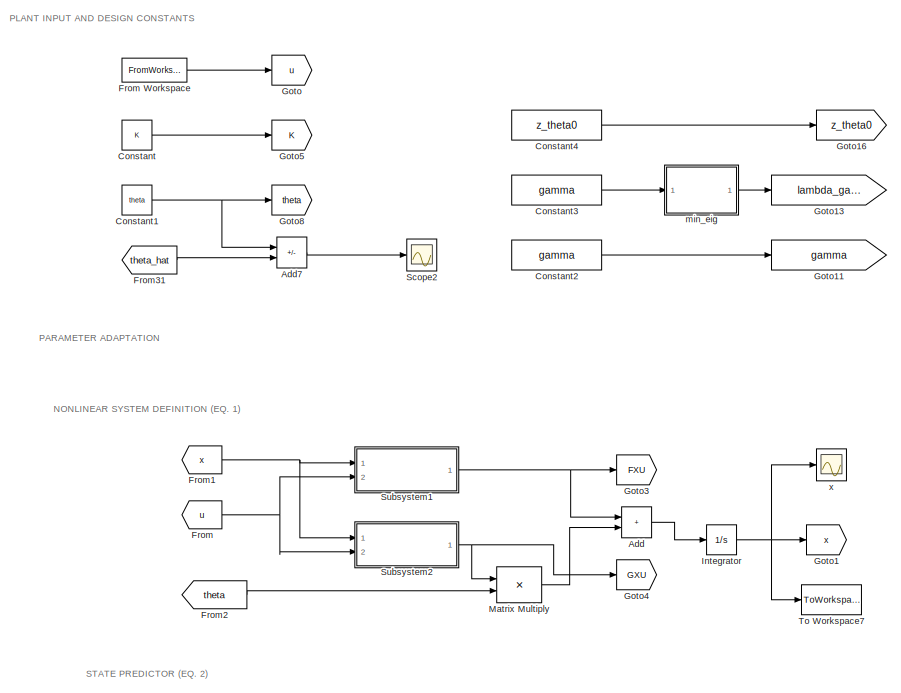
[diagram: root canvas - part 1/3, top left region]
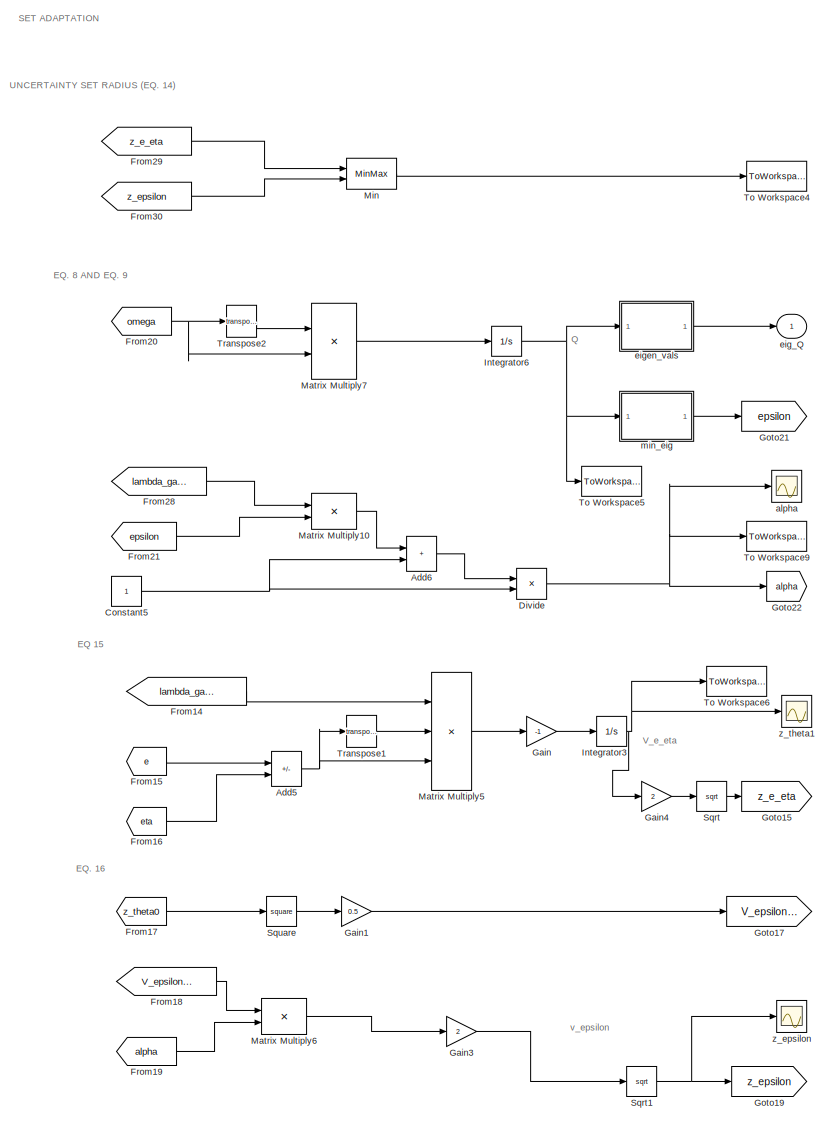
[diagram: root canvas - part 2/3, middle right region]
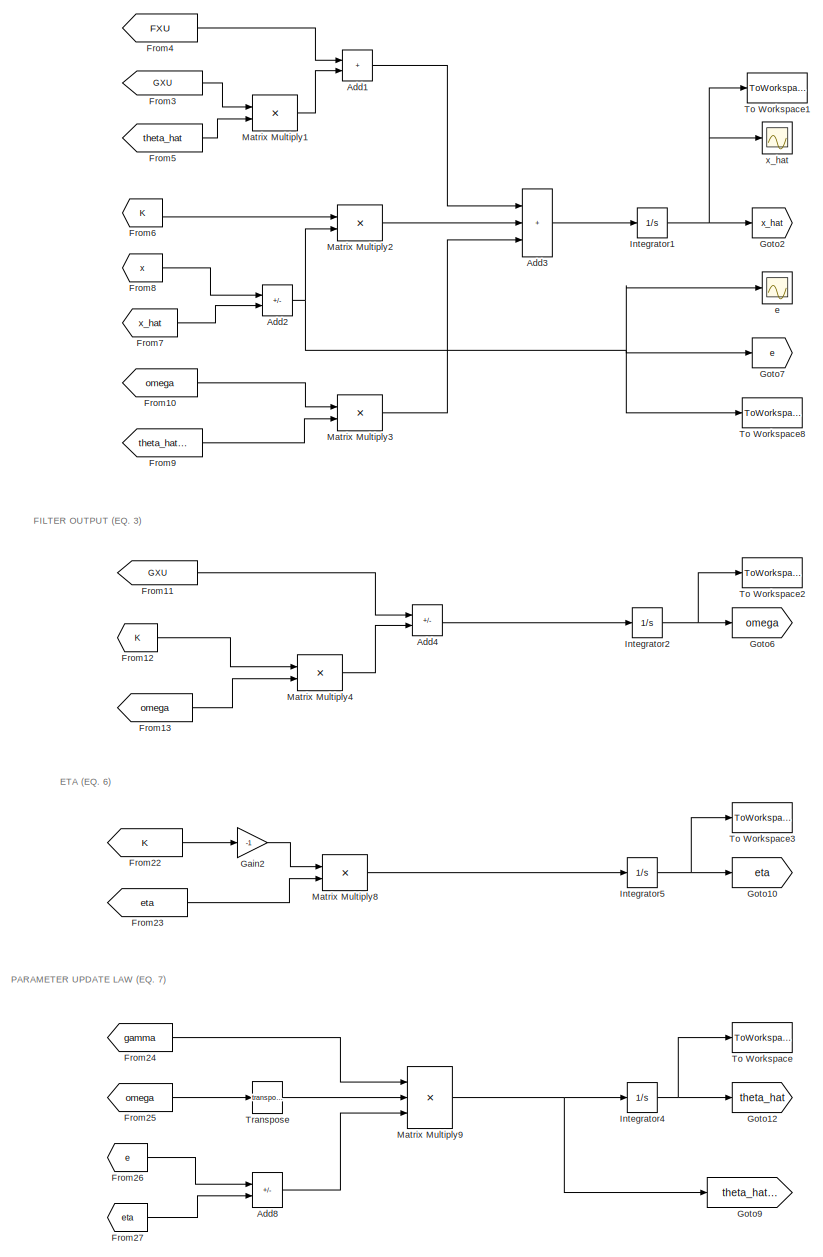
[diagram: root canvas - part 3/3, bottom left region]
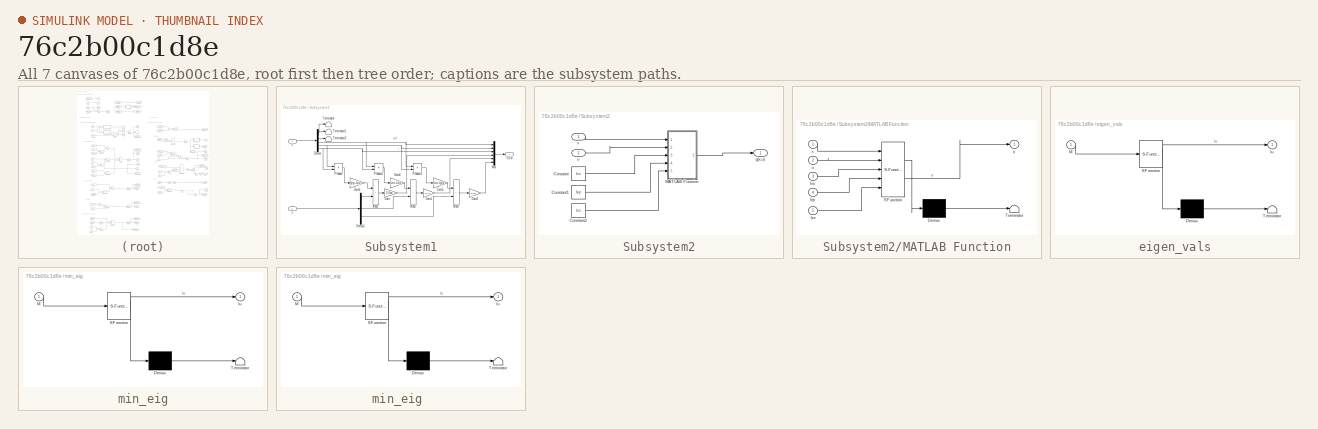
[diagram: thumbnail index - all 7 canvases of the model, root first then tree order]
MODEL slx_76c2b00c1d8e
KIND model
CONFIG AbsTol = auto
CONFIG EnableMultiTasking = off
CONFIG FixedStep = 0.001
CONFIG MaxStep = auto
CONFIG MinStep = auto
CONFIG RelTol = 1e-3
CONFIG SampleTimeConstraint = Unconstrained
CONFIG Solver = FixedStepAuto
CONFIG SolverName = FixedStepAuto
CONFIG StartTime = 0.0
CONFIG StopTime = ts
BLOCK [Sum] Add
  IconShape = rectangular
  Ports = [2, 1]
BLOCK [Sum] Add1
  IconShape = rectangular
  Ports = [2, 1]
BLOCK [Sum] Add2
  IconShape = rectangular
  Inputs = +-
  Ports = [2, 1]
BLOCK [Sum] Add3
  IconShape = rectangular
  Inputs = +++
  Ports = [3, 1]
BLOCK [Sum] Add4
  IconShape = rectangular
  Inputs = +-
  Ports = [2, 1]
BLOCK [Sum] Add5
  IconShape = rectangular
  Inputs = +-
  Ports = [2, 1]
BLOCK [Sum] Add6
  IconShape = rectangular
  Ports = [2, 1]
BLOCK [Sum] Add7
  IconShape = rectangular
  Inputs = +-
  Ports = [2, 1]
BLOCK [Sum] Add8
  IconShape = rectangular
  Inputs = +-
  Ports = [2, 1]
BLOCK [Constant] Constant
  Value = K
BLOCK [Constant] Constant1
  Value = theta
BLOCK [Constant] Constant2
  Value = gamma
BLOCK [Constant] Constant3
  Value = gamma
BLOCK [Constant] Constant4
  Value = z_theta0
BLOCK [Constant] Constant5
BLOCK [Product] Divide
  Inputs = /*
  Ports = [2, 1]
BLOCK [From] From
  GotoTag = u
BLOCK [FromWorkspace] From Workspace
  VariableName = uSim
BLOCK [From] From1
  GotoTag = x
BLOCK [From] From10
  GotoTag = omega
BLOCK [From] From11
  GotoTag = GXU
BLOCK [From] From12
  GotoTag = K
BLOCK [From] From13
  GotoTag = omega
BLOCK [From] From14
  GotoTag = lambda_gamma
BLOCK [From] From15
  GotoTag = e
BLOCK [From] From16
  GotoTag = eta
BLOCK [From] From17
  GotoTag = z_theta0
BLOCK [From] From18
  GotoTag = V_epsilon_t0
BLOCK [From] From19
  GotoTag = alpha
BLOCK [From] From2
  GotoTag = theta
BLOCK [From] From20
  GotoTag = omega
BLOCK [From] From21
  GotoTag = epsilon
BLOCK [From] From22
  GotoTag = K
BLOCK [From] From23
  GotoTag = eta
BLOCK [From] From24
  GotoTag = gamma
BLOCK [From] From25
  GotoTag = omega
BLOCK [From] From26
  GotoTag = e
BLOCK [From] From27
  GotoTag = eta
BLOCK [From] From28
  GotoTag = lambda_gamma
BLOCK [From] From29
  GotoTag = z_e_eta
BLOCK [From] From3
  GotoTag = GXU
BLOCK [From] From30
  GotoTag = z_epsilon
BLOCK [From] From31
  GotoTag = theta_hat
BLOCK [From] From4
  GotoTag = FXU
BLOCK [From] From5
  GotoTag = theta_hat
BLOCK [From] From6
  GotoTag = K
BLOCK [From] From7
  GotoTag = x_hat
BLOCK [From] From8
  GotoTag = x
BLOCK [From] From9
  GotoTag = theta_hat_dot
BLOCK [Gain] Gain
  Gain = -1
BLOCK [Gain] Gain1
  Gain = 0.5
BLOCK [Gain] Gain2
  Gain = -1
BLOCK [Gain] Gain3
  Gain = 2
BLOCK [Gain] Gain4
  Gain = 2
BLOCK [Goto] Goto
  GotoTag = u
BLOCK [Goto] Goto1
  GotoTag = x
BLOCK [Goto] Goto10
  GotoTag = eta
BLOCK [Goto] Goto11
  GotoTag = gamma
BLOCK [Goto] Goto12
  GotoTag = theta_hat
BLOCK [Goto] Goto13
  GotoTag = lambda_gamma
BLOCK [Goto] Goto15
  GotoTag = z_e_eta
BLOCK [Goto] Goto16
  GotoTag = z_theta0
BLOCK [Goto] Goto17
  GotoTag = V_epsilon_t0
BLOCK [Goto] Goto19
  GotoTag = z_epsilon
BLOCK [Goto] Goto2
  GotoTag = x_hat
BLOCK [Goto] Goto21
  GotoTag = epsilon
BLOCK [Goto] Goto22
  GotoTag = alpha
BLOCK [Goto] Goto3
  GotoTag = FXU
BLOCK [Goto] Goto4
  GotoTag = GXU
BLOCK [Goto] Goto5
  GotoTag = K
BLOCK [Goto] Goto6
  GotoTag = omega
BLOCK [Goto] Goto7
  GotoTag = e
BLOCK [Goto] Goto8
  GotoTag = theta
BLOCK [Goto] Goto9
  GotoTag = theta_hat_dot
BLOCK [Integrator] Integrator
  InitialCondition = x(:,i)
  Ports = [1, 1]
BLOCK [Integrator] Integrator1
  InitialCondition = xHat(:,i)
  Ports = [1, 1]
BLOCK [Integrator] Integrator2
  InitialCondition = omega(:,:,i)
  Ports = [1, 1]
BLOCK [Integrator] Integrator3
  InitialCondition = V_e_eta(i)
  Ports = [1, 1]
BLOCK [Integrator] Integrator4
  InitialCondition = thetaHat(:,i)
  Ports = [1, 1]
BLOCK [Integrator] Integrator5
  InitialCondition = eta(:,i)
  Ports = [1, 1]
BLOCK [Integrator] Integrator6
  InitialCondition = Q(:,:,i)
  Ports = [1, 1]
BLOCK [Product] Matrix Multiply
  Multiplication = Matrix(*)
  Ports = [2, 1]
BLOCK [Product] Matrix Multiply1
  Multiplication = Matrix(*)
  Ports = [2, 1]
BLOCK [Product] Matrix Multiply10
  Multiplication = Matrix(*)
  Ports = [2, 1]
BLOCK [Product] Matrix Multiply2
  Multiplication = Matrix(*)
  Ports = [2, 1]
BLOCK [Product] Matrix Multiply3
  Multiplication = Matrix(*)
  Ports = [2, 1]
BLOCK [Product] Matrix Multiply4
  Multiplication = Matrix(*)
  Ports = [2, 1]
BLOCK [Product] Matrix Multiply5
  Inputs = 3
  Multiplication = Matrix(*)
  Ports = [3, 1]
BLOCK [Product] Matrix Multiply6
  Multiplication = Matrix(*)
  Ports = [2, 1]
BLOCK [Product] Matrix Multiply7
  Multiplication = Matrix(*)
  Ports = [2, 1]
BLOCK [Product] Matrix Multiply8
  Multiplication = Matrix(*)
  Ports = [2, 1]
BLOCK [Product] Matrix Multiply9
  Inputs = 3
  Multiplication = Matrix(*)
  Ports = [3, 1]
BLOCK [MinMax] Min
  Inputs = 2
  Ports = [2, 1]
BLOCK [Scope] Scope2
  Floating = off
  NumInputPorts = 1
  Ports = [1]
  ScopeSpecificationString = Simulink.scopes.TimeScopeBlockCfg('CurrentConfiguration', extmgr.ConfigurationSet(extmgr.Configuration('Core','General UI',true),extmgr.Configuration('Core','Source UI',true),extmgr.Configuration('Sources','WiredSimulink',true,'DataLoggingVariableName','ScopeData2'),extmgr.Configuration('Visuals','Time Domain',true,'SerializedDisplays',{struct('MinYLimReal','-0.1875','MaxYLimReal','1.6875','YLabel...<+1429ch>
BLOCK [Sqrt] Sqrt
BLOCK [Sqrt] Sqrt1
BLOCK [Math] Square
  Operator = square
  Ports = [1, 1]
  SignedPower = on
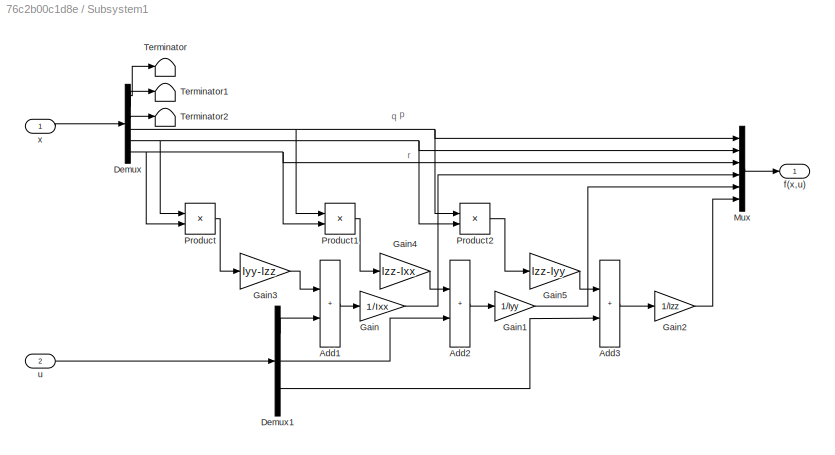
BLOCK [SubSystem] Subsystem1
  Ports = [2, 1]
  RequestExecContextInheritance = off
BLOCK [Sum] Subsystem1/Add1
  IconShape = rectangular
  Ports = [2, 1]
BLOCK [Sum] Subsystem1/Add2
  IconShape = rectangular
  Ports = [2, 1]
BLOCK [Sum] Subsystem1/Add3
  IconShape = rectangular
  Ports = [2, 1]
BLOCK [Demux] Subsystem1/Demux
  Outputs = 6
  Ports = [1, 6]
BLOCK [Demux] Subsystem1/Demux1
  Outputs = 3
  Ports = [1, 3]
BLOCK [Gain] Subsystem1/Gain
  Gain = 1/Ixx
BLOCK [Gain] Subsystem1/Gain1
  Gain = 1/Iyy
BLOCK [Gain] Subsystem1/Gain2
  Gain = 1/Izz
BLOCK [Gain] Subsystem1/Gain3
  Gain = Iyy-Izz
BLOCK [Gain] Subsystem1/Gain4
  Gain = Izz-Ixx
BLOCK [Gain] Subsystem1/Gain5
  Gain = Izz-Iyy
BLOCK [Mux] Subsystem1/Mux
  DisplayOption = bar
  Inputs = 6
  Ports = [6, 1]
BLOCK [Product] Subsystem1/Product
  Ports = [2, 1]
BLOCK [Product] Subsystem1/Product1
  Ports = [2, 1]
BLOCK [Product] Subsystem1/Product2
  Ports = [2, 1]
BLOCK [Terminator] Subsystem1/Terminator
BLOCK [Terminator] Subsystem1/Terminator1
BLOCK [Terminator] Subsystem1/Terminator2
BLOCK [Outport] Subsystem1/f(x,u)
  VectorParamsAs1DForOutWhenUnconnected = off
BLOCK [Inport] Subsystem1/u
  Port = 2
BLOCK [Inport] Subsystem1/x
BLOCK [SubSystem] Subsystem2
  Ports = [2, 1]
  RequestExecContextInheritance = off
BLOCK [Constant] Subsystem2/Constant
  Value = Ixx
BLOCK [Constant] Subsystem2/Constant1
  Value = Iyy
BLOCK [Constant] Subsystem2/Constant2
  Value = Izz
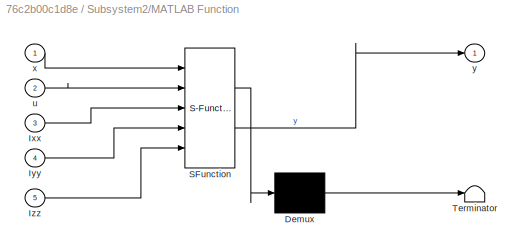
BLOCK [SubSystem] Subsystem2/MATLAB Function
  ErrorFcn = Stateflow.Translate.translate
  PermitHierarchicalResolution = ExplicitOnly
  Ports = [5, 1]
  RequestExecContextInheritance = off
  SFBlockType = MATLAB Function
  TreatAsAtomicUnit = on
BLOCK [Demux] Subsystem2/MATLAB Function/ Demux 
  Outputs = 1
  Ports = [1, 1]
BLOCK [S-Function] Subsystem2/MATLAB Function/ SFunction 
  EnableBusSupport = on
  FunctionName = sf_sfun
  PortCounts = [5 2]
  Ports = [5, 2]
  SFcnIsStateOwnerBlock = off
  SFunctionDeploymentMode = off
  Tag = Stateflow S-Function 5
BLOCK [Terminator] Subsystem2/MATLAB Function/ Terminator 
BLOCK [Inport] Subsystem2/MATLAB Function/Ixx
  Port = 3
BLOCK [Inport] Subsystem2/MATLAB Function/Iyy
  Port = 4
BLOCK [Inport] Subsystem2/MATLAB Function/Izz
  Port = 5
BLOCK [Inport] Subsystem2/MATLAB Function/u
  Port = 2
BLOCK [Inport] Subsystem2/MATLAB Function/x
BLOCK [Outport] Subsystem2/MATLAB Function/y
  VectorParamsAs1DForOutWhenUnconnected = off
BLOCK [Outport] Subsystem2/g(x,u)
  VectorParamsAs1DForOutWhenUnconnected = off
BLOCK [Inport] Subsystem2/u
  Port = 2
BLOCK [Inport] Subsystem2/x
BLOCK [ToWorkspace] To Workspace
  MaxDataPoints = inf
  Ports = [1]
  SampleTime = -1
  SaveFormat = Timeseries
  VariableName = theta_hat
BLOCK [ToWorkspace] To Workspace1
  MaxDataPoints = inf
  Ports = [1]
  SampleTime = -1
  SaveFormat = Timeseries
  VariableName = xHat
BLOCK [ToWorkspace] To Workspace2
  MaxDataPoints = inf
  Ports = [1]
  SampleTime = -1
  SaveFormat = Timeseries
  VariableName = omega
BLOCK [ToWorkspace] To Workspace3
  MaxDataPoints = inf
  Ports = [1]
  SampleTime = -1
  SaveFormat = Timeseries
  VariableName = eta
BLOCK [ToWorkspace] To Workspace4
  MaxDataPoints = inf
  Ports = [1]
  SampleTime = -1
  SaveFormat = Timeseries
  VariableName = z_theta_current
BLOCK [ToWorkspace] To Workspace5
  MaxDataPoints = inf
  Ports = [1]
  SampleTime = -1
  SaveFormat = Timeseries
  VariableName = Q
BLOCK [ToWorkspace] To Workspace6
  MaxDataPoints = inf
  Ports = [1]
  SampleTime = -1
  SaveFormat = Timeseries
  VariableName = V_e_eta
BLOCK [ToWorkspace] To Workspace7
  MaxDataPoints = inf
  Ports = [1]
  SampleTime = -1
  SaveFormat = Timeseries
  VariableName = x
BLOCK [ToWorkspace] To Workspace8
  MaxDataPoints = inf
  Ports = [1]
  SampleTime = -1
  SaveFormat = Timeseries
  VariableName = e
BLOCK [ToWorkspace] To Workspace9
  MaxDataPoints = inf
  Ports = [1]
  SampleTime = -1
  SaveFormat = Timeseries
  VariableName = alpha
BLOCK [Math] Transpose
  Operator = transpose
  Ports = [1, 1]
  SignedPower = on
BLOCK [Math] Transpose1
  Operator = transpose
  Ports = [1, 1]
  SignedPower = on
BLOCK [Math] Transpose2
  Operator = transpose
  Ports = [1, 1]
  SignedPower = on
BLOCK [Scope] alpha
  Floating = off
  NameLocation = top
  NumInputPorts = 1
  Ports = [1]
  ScopeSpecificationString = Simulink.scopes.TimeScopeBlockCfg('CurrentConfiguration', extmgr.ConfigurationSet(extmgr.Configuration('Core','General UI',true),extmgr.Configuration('Core','Source UI',true),extmgr.Configuration('Sources','WiredSimulink',true,'DataLoggingVariableName','ScopeData6'),extmgr.Configuration('Visuals','Time Domain',true,'SerializedDisplays',{struct('MinYLimReal','-0.11085','MaxYLimReal','1.12343','YLab...<+1438ch>
BLOCK [Scope] e
  Floating = off
  NumInputPorts = 1
  Ports = [1]
  ScopeSpecificationString = Simulink.scopes.TimeScopeBlockCfg('CurrentConfiguration', extmgr.ConfigurationSet(extmgr.Configuration('Core','General UI',true),extmgr.Configuration('Core','Source UI',true),extmgr.Configuration('Sources','WiredSimulink',true,'DataLoggingVariableName','ScopeData1'),extmgr.Configuration('Visuals','Time Domain',true,'SerializedDisplays',{struct('MinYLimReal','-0.93395','MaxYLimReal','1.29678','YLab...<+1421ch>
BLOCK [Outport] eig_Q
  VectorParamsAs1DForOutWhenUnconnected = off
BLOCK [SubSystem] eigen_vals
  ErrorFcn = Stateflow.Translate.translate
  PermitHierarchicalResolution = ExplicitOnly
  Ports = [1, 1]
  RequestExecContextInheritance = off
  SFBlockType = MATLAB Function
  TreatAsAtomicUnit = on
BLOCK [Demux] eigen_vals/ Demux 
  Outputs = 1
  Ports = [1, 1]
BLOCK [S-Function] eigen_vals/ SFunction 
  EnableBusSupport = on
  FunctionName = sf_sfun
  PortCounts = [1 2]
  Ports = [1, 2]
  SFcnIsStateOwnerBlock = off
  SFunctionDeploymentMode = off
  Tag = Stateflow S-Function 3
BLOCK [Terminator] eigen_vals/ Terminator 
BLOCK [Inport] eigen_vals/M
BLOCK [Outport] eigen_vals/lu
  VectorParamsAs1DForOutWhenUnconnected = off
BLOCK [SubSystem] min_eig
  ErrorFcn = Stateflow.Translate.translate
  PermitHierarchicalResolution = ExplicitOnly
  Ports = [1, 1]
  RequestExecContextInheritance = off
  SFBlockType = MATLAB Function
  TreatAsAtomicUnit = on
BLOCK [SubSystem] min_eig 
  ErrorFcn = Stateflow.Translate.translate
  PermitHierarchicalResolution = ExplicitOnly
  Ports = [1, 1]
  RequestExecContextInheritance = off
  SFBlockType = MATLAB Function
  TreatAsAtomicUnit = on
BLOCK [Demux] min_eig / Demux 
  Outputs = 1
  Ports = [1, 1]
BLOCK [S-Function] min_eig / SFunction 
  EnableBusSupport = on
  FunctionName = sf_sfun
  PortCounts = [1 2]
  Ports = [1, 2]
  SFcnIsStateOwnerBlock = off
  SFunctionDeploymentMode = off
  Tag = Stateflow S-Function 1
BLOCK [Terminator] min_eig / Terminator 
BLOCK [Inport] min_eig /M
BLOCK [Outport] min_eig /lu
  VectorParamsAs1DForOutWhenUnconnected = off
BLOCK [Demux] min_eig/ Demux 
  Outputs = 1
  Ports = [1, 1]
BLOCK [S-Function] min_eig/ SFunction 
  EnableBusSupport = on
  FunctionName = sf_sfun
  PortCounts = [1 2]
  Ports = [1, 2]
  SFcnIsStateOwnerBlock = off
  SFunctionDeploymentMode = off
  Tag = Stateflow S-Function 2
BLOCK [Terminator] min_eig/ Terminator 
BLOCK [Inport] min_eig/M
BLOCK [Outport] min_eig/lu
  VectorParamsAs1DForOutWhenUnconnected = off
BLOCK [Scope] x
  Floating = off
  NumInputPorts = 1
  Ports = [1]
  ScopeSpecificationString = Simulink.scopes.TimeScopeBlockCfg('CurrentConfiguration', extmgr.ConfigurationSet(extmgr.Configuration('Core','General UI',true),extmgr.Configuration('Core','Source UI',true),extmgr.Configuration('Sources','WiredSimulink',true,'DataLoggingVariableName','ScopeData3'),extmgr.Configuration('Visuals','Time Domain',true,'SerializedDisplays',{struct('MinYLimReal','-2.28272','MaxYLimReal','5.5816','YLabe...<+1431ch>
BLOCK [Scope] x_hat
  Floating = off
  NumInputPorts = 1
  Ports = [1]
  ScopeSpecificationString = Simulink.scopes.TimeScopeBlockCfg('CurrentConfiguration', extmgr.ConfigurationSet(extmgr.Configuration('Core','General UI',true),extmgr.Configuration('Core','Source UI',true),extmgr.Configuration('Sources','WiredSimulink',true),extmgr.Configuration('Visuals','Time Domain',true,'SerializedDisplays',{struct('MinYLimReal','-2.33447','MaxYLimReal','5.62062','YLabelReal','','MinYLimMag','0.00000','MaxY...<+1446ch>
BLOCK [Scope] z_epsilon
  Floating = off
  NumInputPorts = 1
  Ports = [1]
  ScopeSpecificationString = Simulink.scopes.TimeScopeBlockCfg('CurrentConfiguration', extmgr.ConfigurationSet(extmgr.Configuration('Core','General UI',true),extmgr.Configuration('Core','Source UI',true),extmgr.Configuration('Sources','WiredSimulink',true,'DataLoggingVariableName','ScopeData1'),extmgr.Configuration('Visuals','Time Domain',true,'SerializedDisplays',{struct('MinYLimReal','0.0083','MaxYLimReal','7.85582','YLabel...<+1431ch>
BLOCK [Scope] z_theta1
  Floating = off
  NumInputPorts = 1
  Ports = [1]
  ScopeSpecificationString = Simulink.scopes.TimeScopeBlockCfg('CurrentConfiguration', extmgr.ConfigurationSet(extmgr.Configuration('Core','General UI',true),extmgr.Configuration('Core','Source UI',true),extmgr.Configuration('Sources','WiredSimulink',true,'DataLoggingVariableName','ScopeData5'),extmgr.Configuration('Visuals','Time Domain',true,'SerializedDisplays',{struct('MinYLimReal','0.73438','MaxYLimReal','2.14062','YLabe...<+1441ch>
ANNOTATION (root): EQ 15
ANNOTATION (root): EQ. 16
ANNOTATION (root): EQ. 8 AND EQ. 9
ANNOTATION (root): ETA (EQ. 6)
ANNOTATION (root): FILTER OUTPUT (EQ. 3)
ANNOTATION (root): NONLINEAR SYSTEM DEFINITION (EQ. 1)
ANNOTATION (root): PARAMETER ADAPTATION
ANNOTATION (root): PARAMETER UPDATE LAW (EQ. 7)
ANNOTATION (root): PLANT INPUT AND DESIGN CONSTANTS
ANNOTATION (root): Q
ANNOTATION (root): SET ADAPTATION
ANNOTATION (root): STATE PREDICTOR (EQ. 2)
ANNOTATION (root): UNCERTAINTY SET RADIUS (EQ. 14)
ANNOTATION (root): V_e_eta
ANNOTATION (root): v_epsilon
ANNOTATION Subsystem1: p
ANNOTATION Subsystem1: q
ANNOTATION Subsystem1: r
LINE Add1:1 -> Add3:1
NET Add2:1 -> Goto7:1, Matrix Multiply2:2, To Workspace8:1, e:1
LINE Add3:1 -> Integrator1:1
LINE Add4:1 -> Integrator2:1
NET Add5:1 -> Matrix Multiply5:3, Transpose1:1
LINE Add6:1 -> Divide:1
LINE Add7:1 -> Scope2:1
LINE Add8:1 -> Matrix Multiply9:3
LINE Add:1 -> Integrator:1
NET Constant1:1 -> Add7:1, Goto8:1
LINE Constant2:1 -> Goto11:1
LINE Constant3:1 -> min_eig :1
LINE Constant4:1 -> Goto16:1
NET Constant5:1 -> Add6:2, Divide:2
LINE Constant:1 -> Goto5:1
NET Divide:1 -> Goto22:1, To Workspace9:1, alpha:1
LINE From Workspace:1 -> Goto:1
LINE From10:1 -> Matrix Multiply3:1
LINE From11:1 -> Add4:1
LINE From12:1 -> Matrix Multiply4:1
LINE From13:1 -> Matrix Multiply4:2
LINE From14:1 -> Matrix Multiply5:1
LINE From15:1 -> Add5:1
LINE From16:1 -> Add5:2
LINE From17:1 -> Square:1
LINE From18:1 -> Matrix Multiply6:1
LINE From19:1 -> Matrix Multiply6:2
NET From1:1 -> Subsystem1:1, Subsystem2:1
NET From20:1 -> Matrix Multiply7:2, Transpose2:1
LINE From21:1 -> Matrix Multiply10:2
LINE From22:1 -> Gain2:1
LINE From23:1 -> Matrix Multiply8:2
LINE From24:1 -> Matrix Multiply9:1
LINE From25:1 -> Transpose:1
LINE From26:1 -> Add8:1
LINE From27:1 -> Add8:2
LINE From28:1 -> Matrix Multiply10:1
LINE From29:1 -> Min:1
LINE From2:1 -> Matrix Multiply:2
LINE From30:1 -> Min:2
LINE From31:1 -> Add7:2
LINE From3:1 -> Matrix Multiply1:1
LINE From4:1 -> Add1:1
LINE From5:1 -> Matrix Multiply1:2
LINE From6:1 -> Matrix Multiply2:1
LINE From7:1 -> Add2:2
LINE From8:1 -> Add2:1
LINE From9:1 -> Matrix Multiply3:2
NET From:1 -> Subsystem1:2, Subsystem2:2
LINE Gain1:1 -> Goto17:1
LINE Gain2:1 -> Matrix Multiply8:1
LINE Gain3:1 -> Sqrt1:1
LINE Gain4:1 -> Sqrt:1
LINE Gain:1 -> Integrator3:1
NET Integrator1:1 -> Goto2:1, To Workspace1:1, x_hat:1
NET Integrator2:1 -> Goto6:1, To Workspace2:1
NET Integrator3:1 -> Gain4:1, To Workspace6:1, z_theta1:1
NET Integrator4:1 -> Goto12:1, To Workspace:1
NET Integrator5:1 -> Goto10:1, To Workspace3:1
NET Integrator6:1 -> To Workspace5:1, eigen_vals:1, min_eig:1
NET Integrator:1 -> Goto1:1, To Workspace7:1, x:1
LINE Matrix Multiply10:1 -> Add6:1
LINE Matrix Multiply1:1 -> Add1:2
LINE Matrix Multiply2:1 -> Add3:2
LINE Matrix Multiply3:1 -> Add3:3
LINE Matrix Multiply4:1 -> Add4:2
LINE Matrix Multiply5:1 -> Gain:1
LINE Matrix Multiply6:1 -> Gain3:1
LINE Matrix Multiply7:1 -> Integrator6:1
LINE Matrix Multiply8:1 -> Integrator5:1
NET Matrix Multiply9:1 -> Goto9:1, Integrator4:1
LINE Matrix Multiply:1 -> Add:2
LINE Min:1 -> To Workspace4:1
NET Sqrt1:1 -> Goto19:1, z_epsilon:1
LINE Sqrt:1 -> Goto15:1
LINE Square:1 -> Gain1:1
LINE Subsystem1/Add1:1 -> Subsystem1/Gain:1
LINE Subsystem1/Add2:1 -> Subsystem1/Gain1:1
LINE Subsystem1/Add3:1 -> Subsystem1/Gain2:1
LINE Subsystem1/Demux1:1 -> Subsystem1/Add1:2
LINE Subsystem1/Demux1:2 -> Subsystem1/Add2:2
LINE Subsystem1/Demux1:3 -> Subsystem1/Add3:2
LINE Subsystem1/Demux:1 -> Subsystem1/Terminator:1
LINE Subsystem1/Demux:2 -> Subsystem1/Terminator1:1
LINE Subsystem1/Demux:3 -> Subsystem1/Terminator2:1
NET Subsystem1/Demux:4 -> Subsystem1/Mux:1, Subsystem1/Product1:1, Subsystem1/Product2:1
NET Subsystem1/Demux:5 -> Subsystem1/Mux:2, Subsystem1/Product2:2, Subsystem1/Product:1
NET Subsystem1/Demux:6 -> Subsystem1/Mux:3, Subsystem1/Product1:2, Subsystem1/Product:2
LINE Subsystem1/Gain1:1 -> Subsystem1/Mux:5
LINE Subsystem1/Gain2:1 -> Subsystem1/Mux:6
LINE Subsystem1/Gain3:1 -> Subsystem1/Add1:1
LINE Subsystem1/Gain4:1 -> Subsystem1/Add2:1
LINE Subsystem1/Gain5:1 -> Subsystem1/Add3:1
LINE Subsystem1/Gain:1 -> Subsystem1/Mux:4
LINE Subsystem1/Mux:1 -> Subsystem1/f(x,u):1
LINE Subsystem1/Product1:1 -> Subsystem1/Gain4:1
LINE Subsystem1/Product2:1 -> Subsystem1/Gain5:1
LINE Subsystem1/Product:1 -> Subsystem1/Gain3:1
LINE Subsystem1/u:1 -> Subsystem1/Demux1:1
LINE Subsystem1/x:1 -> Subsystem1/Demux:1
NET Subsystem1:1 -> Add:1, Goto3:1
LINE Subsystem2/Constant1:1 -> Subsystem2/MATLAB Function:4
LINE Subsystem2/Constant2:1 -> Subsystem2/MATLAB Function:5
LINE Subsystem2/Constant:1 -> Subsystem2/MATLAB Function:3
LINE Subsystem2/MATLAB Function:1 -> Subsystem2/g(x,u):1
LINE Subsystem2/u:1 -> Subsystem2/MATLAB Function:2
LINE Subsystem2/x:1 -> Subsystem2/MATLAB Function:1
NET Subsystem2:1 -> Goto4:1, Matrix Multiply:1
LINE Transpose1:1 -> Matrix Multiply5:2
LINE Transpose2:1 -> Matrix Multiply7:1
LINE Transpose:1 -> Matrix Multiply9:2
LINE eigen_vals:1 -> eig_Q:1
LINE min_eig :1 -> Goto13:1
LINE min_eig:1 -> Goto21:1
note: NET lines group one-source signal fan-out (src -> all destinations, sorted); 1:1 wires keep LINE
CHART min_eig
 states=1 transitions=1
  STATE_LABEL 'eML_blk_kernel()'
  STATE_LABEL 'SCRIPT:\nfunction lu = min_eig(M)\nlu = min(real(eig(M)));\n\n'
CHART min_eig states=1 transitions=1
  STATE_LABEL 'eML_blk_kernel()'
  STATE_LABEL 'SCRIPT:\nfunction lu = min_eig(M)\nlu = min(real(eig(M)));\n\n'
CHART eigen_vals states=1 transitions=1
  STATE_LABEL 'eML_blk_kernel()'
  STATE_LABEL 'SCRIPT:\nfunction lu = eigen_vals(M)\nlu = eig(M);\n\n'
CHART Subsystem2/MATLAB Function states=1 transitions=1
  STATE_LABEL 'eML_blk_kernel()'
  STATE_LABEL 'SCRIPT:\nfunction y = gxu(x, u, Ixx, Iyy, Izz)\n    y = zeros(6,3);\n    \n    y(4,1) = 1/Ixx;\n    y(5,2) = 1/Iyy;\n    y(6,3) = 1/Izz;\nend\n'
CHART  states=0 transitions=0
CHART  states=0 transitions=0
CHART  states=0 transitions=0
CHART  states=0 transitions=0
